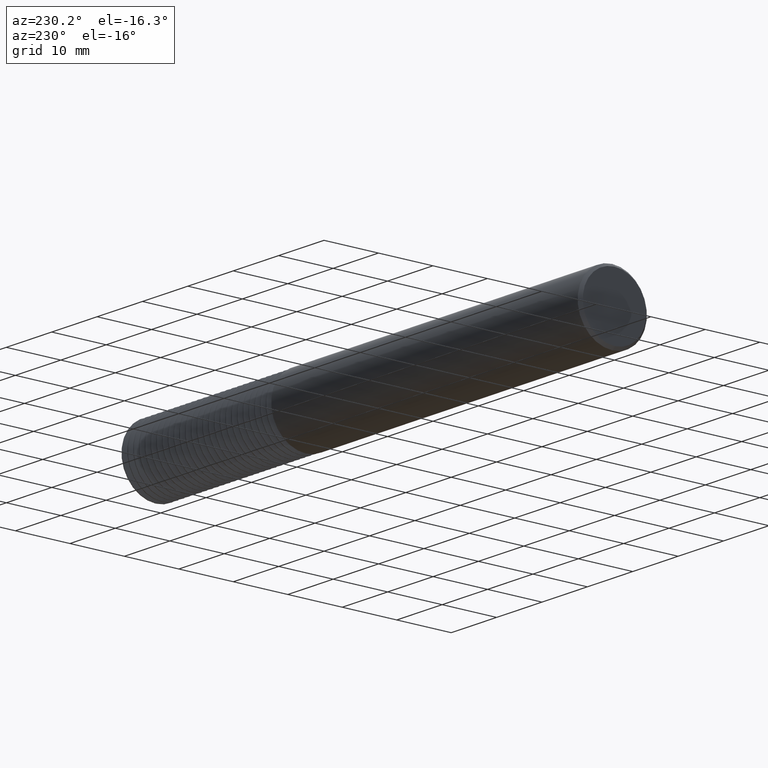
[diagram: clean part render]
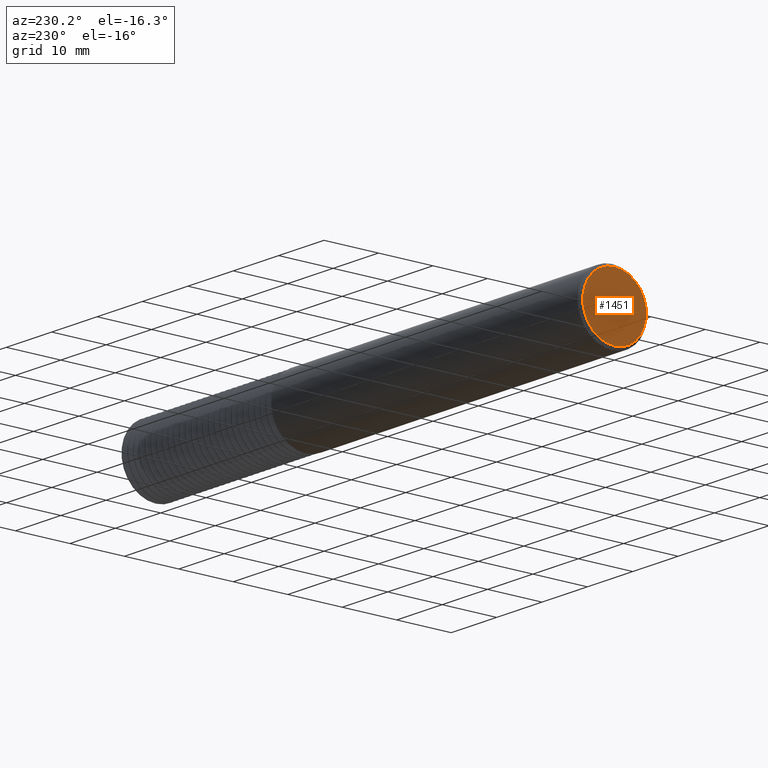
[diagram: same view with one face highlighted and labeled with its STEP entity id]
A machine part, auxiliary view. The second image highlights one B-rep face of the part: STEP entity #1451.
In plain terms, the highlighted planar face has unit normal (-1, 0, 0).
Its self-contained STEP definition (entity closure, byte-faithful):
#173 = CARTESIAN_POINT ( 'NONE',  ( 0.000000000000000000, 0.000000000000000000, -0.2298500000000002763 ) ) ;
#232 = DIRECTION ( 'NONE',  ( 0.000000000000000000, 0.000000000000000000, 1.000000000000000000 ) ) ;
#465 = CARTESIAN_POINT ( 'NONE',  ( 0.000000000000000000, 0.000000000000000000, 0.000000000000000000 ) ) ;
#525 = FACE_OUTER_BOUND ( 'NONE', #1298, .T. ) ;
#795 = CARTESIAN_POINT ( 'NONE',  ( 0.000000000000000000, 0.000000000000000000, 0.000000000000000000 ) ) ;
#1112 = AXIS2_PLACEMENT_3D ( 'NONE', #795, #3344, #5043 ) ;
#1298 = EDGE_LOOP ( 'NONE', ( #5223, #1608 ) ) ;
#1328 = DIRECTION ( 'NONE',  ( -1.000000000000000000, 0.000000000000000000, 0.000000000000000000 ) ) ;
#1451 = ADVANCED_FACE ( 'NONE', ( #525 ), #5252, .T. ) ;
#1608 = ORIENTED_EDGE ( 'NONE', *, *, #4897, .T. ) ;
#1724 = AXIS2_PLACEMENT_3D ( 'NONE', #1895, #5229, #4423 ) ;
#1895 = CARTESIAN_POINT ( 'NONE',  ( 0.000000000000000000, 0.000000000000000000, 0.000000000000000000 ) ) ;
#2101 = CARTESIAN_POINT ( 'NONE',  ( 0.000000000000000000, 2.937315347754928730E-17, 0.2298500000000002763 ) ) ;
#2401 = VERTEX_POINT ( 'NONE', #173 ) ;
#2448 = CIRCLE ( 'NONE', #1112, 0.2298500000000002763 ) ;
#3344 = DIRECTION ( 'NONE',  ( -1.000000000000000000, 0.000000000000000000, 0.000000000000000000 ) ) ;
#3518 = CIRCLE ( 'NONE', #5482, 0.2298500000000002763 ) ;
#4423 = DIRECTION ( 'NONE',  ( 0.000000000000000000, 0.000000000000000000, 1.000000000000000000 ) ) ;
#4897 = EDGE_CURVE ( 'NONE', #5302, #2401, #2448, .T. ) ;
#5043 = DIRECTION ( 'NONE',  ( 0.000000000000000000, 0.000000000000000000, 1.000000000000000000 ) ) ;
#5223 = ORIENTED_EDGE ( 'NONE', *, *, #5387, .T. ) ;
#5229 = DIRECTION ( 'NONE',  ( -1.000000000000000000, 0.000000000000000000, 0.000000000000000000 ) ) ;
#5252 = PLANE ( 'NONE',  #1724 ) ;
#5302 = VERTEX_POINT ( 'NONE', #2101 ) ;
#5387 = EDGE_CURVE ( 'NONE', #2401, #5302, #3518, .T. ) ;
#5482 = AXIS2_PLACEMENT_3D ( 'NONE', #465, #1328, #232 ) ;